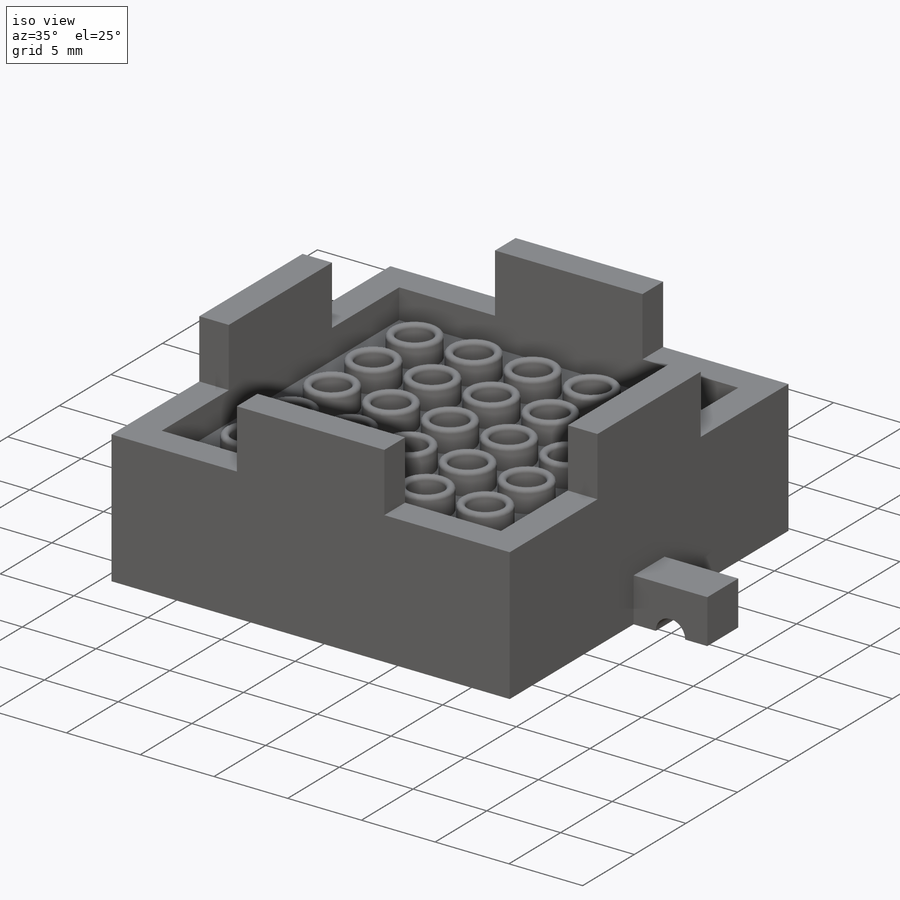
[diagram: iso view]
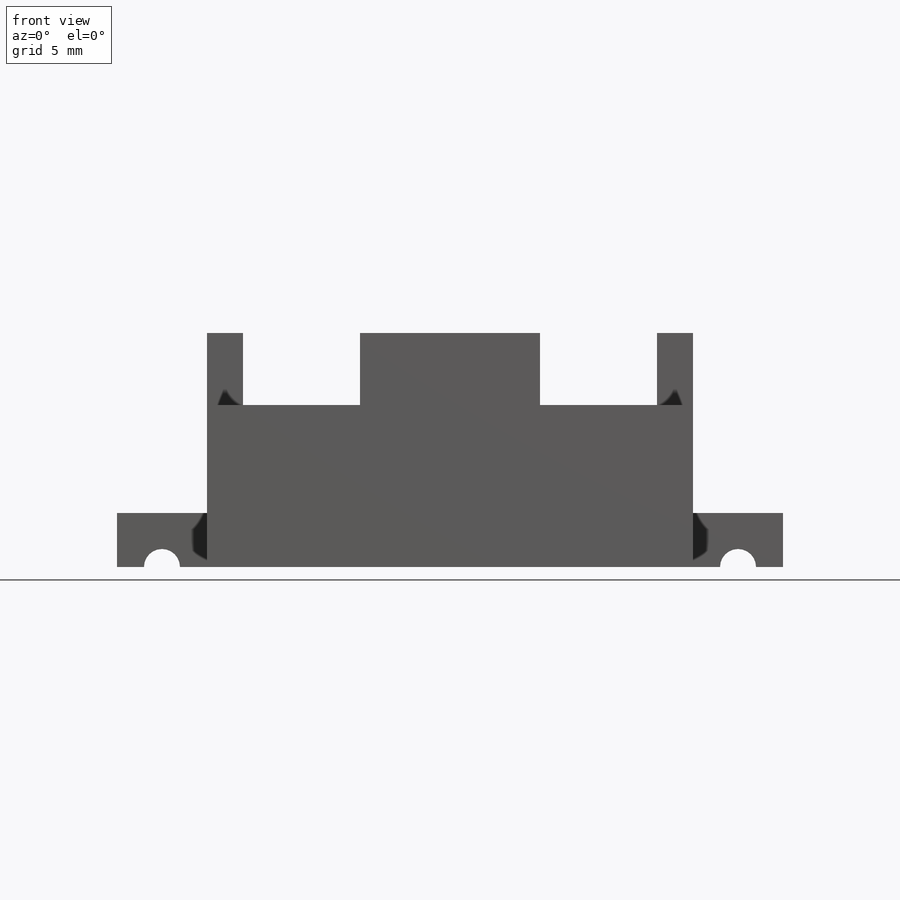
[diagram: front view]
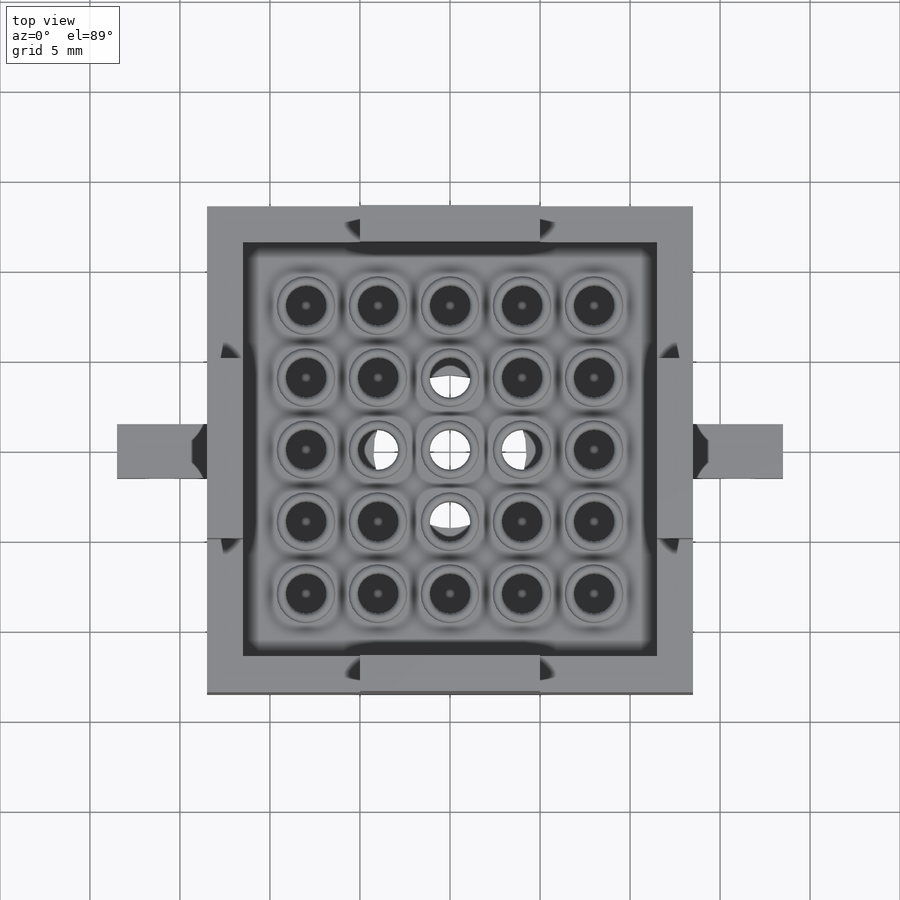
[diagram: top view]
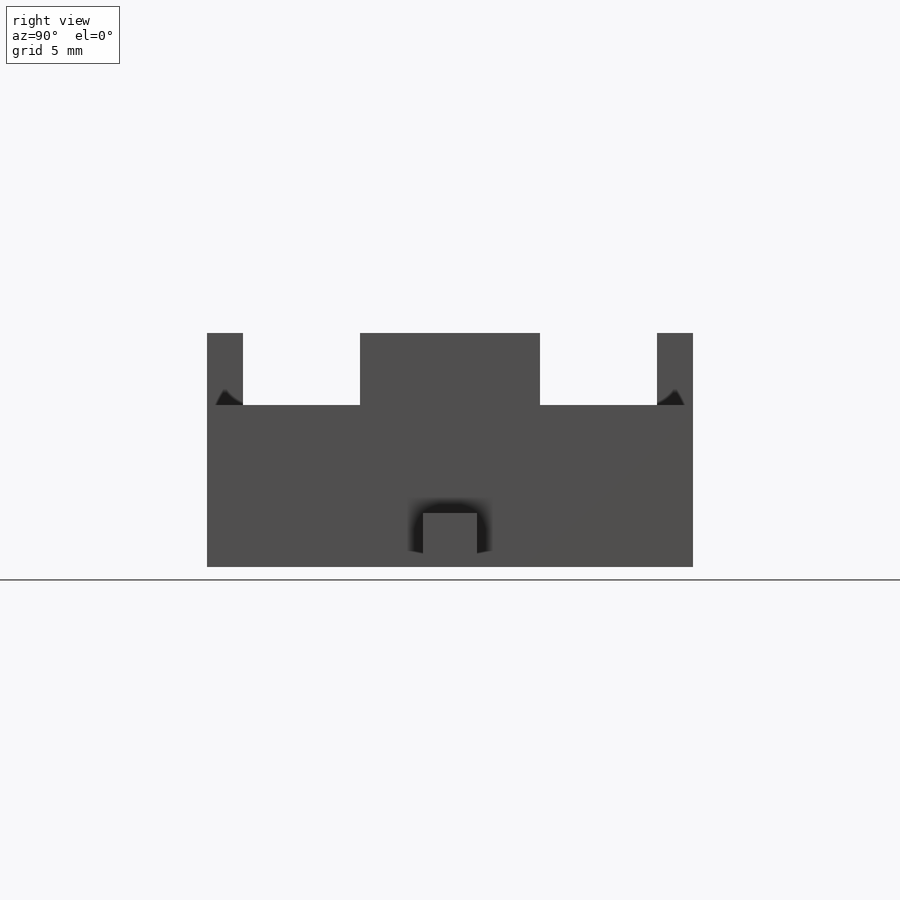
[diagram: right view]
SOLIDWORKS PART (.sldprt)
format: sldprt  version: not decoded by parser v0  size: 613,376 bytes
history: native  units: mm
features: sketch x11, extrude x8, cut_extrude x3, pattern_linear x2, pattern_circular x2, material x1, fillet x1 (+13 scaffold rows collapsed)
feature tree (41):
  scaffold x13  (default folders/planes/origin — collapsed)
  material  "Material <not specified>"
  sketch  "Sketch1"  dims[c1.D1=23.0mm c1.D2=18.5mm c2.D2=90.0deg c3.D2=2.0mm]
  extrude  "Boss-Extrude1"  Depth=2mm
  sketch  "Sketch2"
  extrude  "Boss-Extrude2"  Depth=2mm
  sketch  "Sketch3"  dims[D1=2.0mm]
  extrude  "Boss-Extrude3"  Depth=3mm
  sketch  "Sketch6"  dims[D2=3.25mm D1=3.5mm D3=3.5mm]
  extrude  "Boss-Extrude5"  Depth=1.5mm
  sketch  "Sketch7"  dims[D1=0.5mm]
  cut_extrude  "Cut-Extrude2"  [1 undecoded]
  fillet  "Fillet1"  Radius=0.25mm
  pattern_linear  "LPattern3"  Count1=5 Count2=5 Spacing1=4mm Spacing2=4mm
  sketch  "Sketch11"  dims[c1.D1=1.5mm c1.D3=1.5mm c2.D1=1.5mm c2.D2=1.6mm c2.D3=1.6mm]
  extrude  "Boss-Extrude8"  [1 undecoded]
  pattern_linear  "LPattern2"  Count1=6 Count2=6 Spacing1=4mm Spacing2=4mm
  sketch  "Sketch8"
  extrude  "Boss-Extrude6"  Depth=2mm
  sketch  "Sketch9"  dims[D1=8.5mm]
  cut_extrude  "Cut-Extrude3"  Depth=5mm
  sketch  "Sketch10"  dims[D1=10.0mm]
  extrude  "Boss-Extrude7"  Depth=4mm
  pattern_circular  "CirPattern2"  Count=4 Angle=360deg
  sketch  "Sketch12"  dims[D1=3.0mm]
  extrude  "Boss-Extrude9"  Depth=5mm
  pattern_circular  "CirPattern1"  Count=2 Angle=360deg
  sketch  "Sketch13"  dims[c1.D1=2.0mm c1.D2=1.0mm c2.D1=1.0mm]
  cut_extrude  "Cut-Extrude4"  [1 undecoded]
decode coverage: 22 of 27 modeling features carry decoded parameters
note: 3 parameter values undecoded
summary: no parameter record found for 3 features
note: suppression state not decoded; provenance and decode notes live in map.json
